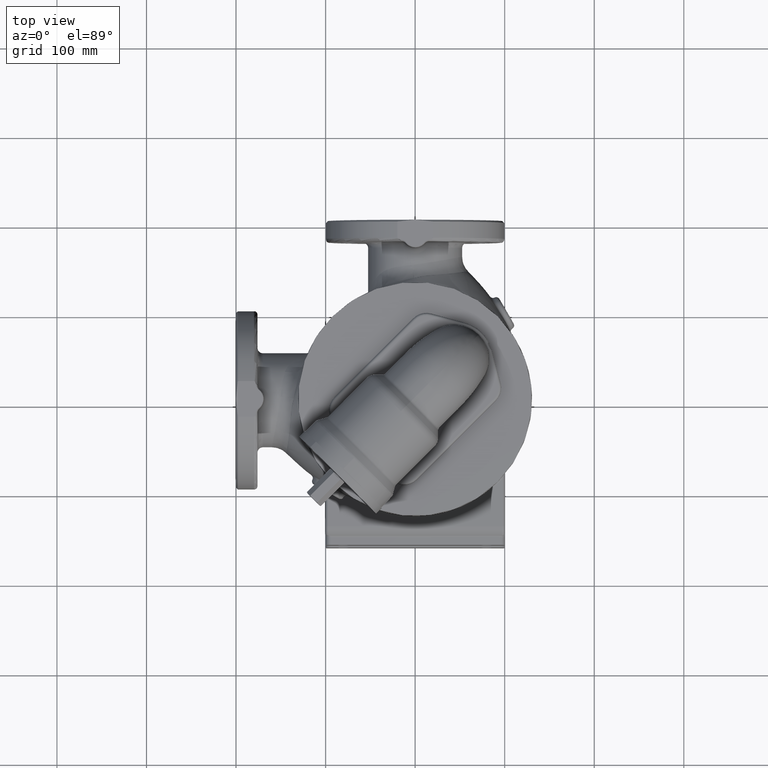
[diagram: clean part render]
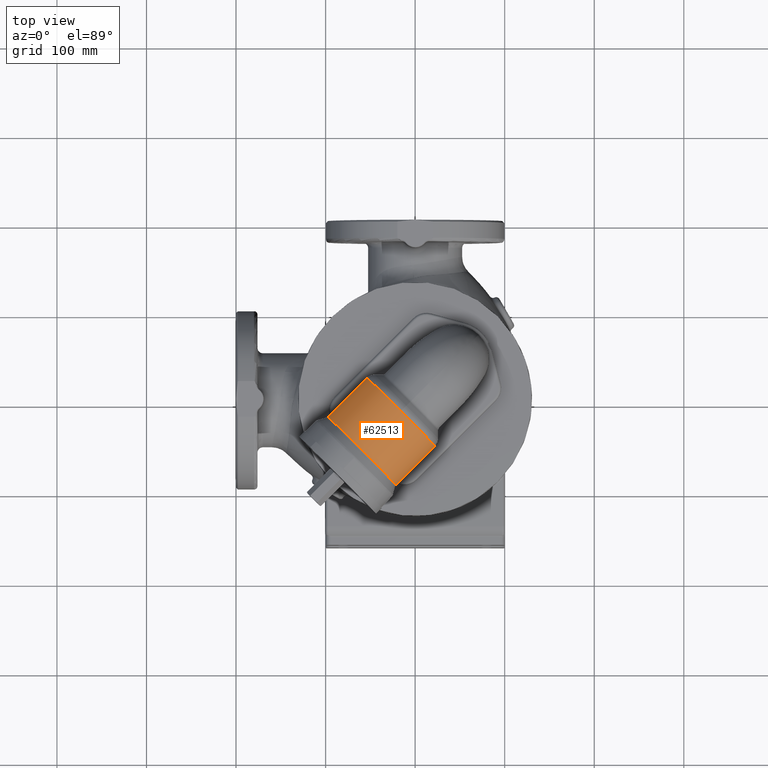
[diagram: same view with one face highlighted and labeled with its STEP entity id]
A machine part, top view. The second image highlights one B-rep face of the part: STEP entity #62513.
In plain terms, the highlighted cylindrical surface (partial cylindrical patch) has radius 54 mm, axis along (-0.7071, -0.7071, 0).
Its self-contained STEP definition (entity closure, byte-faithful):
#13935=CARTESIAN_POINT('',(-7.518984942224E0,-2.425918965083E1,
1.863133529900E2));
#13952=CARTESIAN_POINT('',(-2.425918965083E1,-7.518984942225E0,
1.863133529900E2));
#13984=CARTESIAN_POINT('',(-5.942235361104E1,-5.942235361104E1,2.39E2));
#13985=DIRECTION('',(-7.071067811865E-1,-7.071067811865E-1,0.E0));
#13986=DIRECTION('',(4.396053184643E-1,-4.396053184643E-1,-7.832587873467E-1));
#13987=AXIS2_PLACEMENT_3D('',#13984,#13985,#13986);
#13989=CARTESIAN_POINT('',(-8.316104080811E1,-3.568366641397E1,
1.967040254833E2));
#13990=CARTESIAN_POINT('',(-8.306502850757E1,-3.534713051201E1,
1.968390197705E2));
#13991=CARTESIAN_POINT('',(-8.286564048663E1,-3.467954031279E1,
1.971051392192E2));
#13992=CARTESIAN_POINT('',(-8.254484323903E1,-3.369327251899E1,
1.974924102545E2));
#13993=CARTESIAN_POINT('',(-8.220388502708E1,-3.272448906897E1,
1.978660577686E2));
#13994=CARTESIAN_POINT('',(-8.184413610980E1,-3.177446545072E1,
1.982248911215E2));
#13995=CARTESIAN_POINT('',(-8.146707413907E1,-3.084451051865E1,
1.985677987216E2));
#13996=CARTESIAN_POINT('',(-8.107403842639E1,-2.993535448442E1,
1.988939854637E2));
#13997=CARTESIAN_POINT('',(-8.066633700145E1,-2.904755217901E1,
1.992028128318E2));
#13998=CARTESIAN_POINT('',(-8.024517288405E1,-2.818136175681E1,
1.994938390296E2));
#13999=CARTESIAN_POINT('',(-7.981163747956E1,-2.733680532605E1,
1.997667860401E2));
#14000=CARTESIAN_POINT('',(-7.936669853628E1,-2.651369708532E1,
2.000215182625E2));
#14001=CARTESIAN_POINT('',(-7.891119133879E1,-2.571167203196E1,
2.002580197040E2));
#14002=CARTESIAN_POINT('',(-7.844582004519E1,-2.493022418164E1,
2.004763684417E2));
#14003=CARTESIAN_POINT('',(-7.797115920625E1,-2.416873561731E1,
2.006767151017E2));
#14004=CARTESIAN_POINT('',(-7.748765835416E1,-2.342650454799E1,
2.008592625184E2));
#14005=CARTESIAN_POINT('',(-7.699564735738E1,-2.270276905178E1,
2.010242478511E2));
#14006=CARTESIAN_POINT('',(-7.649534347989E1,-2.199672870045E1,
2.011719267888E2));
#14007=CARTESIAN_POINT('',(-7.598685900563E1,-2.130756304604E1,
2.013025601556E2));
#14008=CARTESIAN_POINT('',(-7.547020842807E1,-2.063444652139E1,
2.014164028436E2));
#14009=CARTESIAN_POINT('',(-7.494531617625E1,-1.997656083966E1,
2.015136952417E2));
#14010=CARTESIAN_POINT('',(-7.441202277914E1,-1.933310511942E1,
2.015946556314E2));
#14011=CARTESIAN_POINT('',(-7.387009080918E1,-1.870330410904E1,
2.016594743524E2));
#14012=CARTESIAN_POINT('',(-7.331921031409E1,-1.808641496512E1,
2.017083092750E2));
#14013=CARTESIAN_POINT('',(-7.275900376958E1,-1.748173287399E1,
2.017412824350E2));
#14014=CARTESIAN_POINT('',(-7.218903049802E1,-1.688859591751E1,
2.017584775201E2));
#14015=CARTESIAN_POINT('',(-7.160879116891E1,-1.630638891301E1,
2.017599388805E2));
#14016=CARTESIAN_POINT('',(-7.101773135567E1,-1.573454723197E1,
2.017456705610E2));
#14017=CARTESIAN_POINT('',(-7.041524502881E1,-1.517256075161E1,
2.017156358929E2));
#14018=CARTESIAN_POINT('',(-6.980067844787E1,-1.461997767537E1,
2.016697581898E2));
#14019=CARTESIAN_POINT('',(-6.917333429806E1,-1.407640857657E1,
2.016079221668E2));
#14020=CARTESIAN_POINT('',(-6.853247632261E1,-1.354153086130E1,
2.015299761214E2));
#14021=CARTESIAN_POINT('',(-6.787733492448E1,-1.301509314384E1,
2.014357355822E2));
#14022=CARTESIAN_POINT('',(-6.720711348480E1,-1.249692051207E1,
2.013249874909E2));
#14023=CARTESIAN_POINT('',(-6.652099618891E1,-1.198692102164E1,
2.011974952273E2));
#14024=CARTESIAN_POINT('',(-6.581815787529E1,-1.148509211858E1,
2.010530057395E2));
#14025=CARTESIAN_POINT('',(-6.509777605933E1,-1.099152763707E1,
2.008912583042E2));
#14026=CARTESIAN_POINT('',(-6.435904531975E1,-1.050642492501E1,
2.007119952269E2));
#14027=CARTESIAN_POINT('',(-6.360119442976E1,-1.003009160025E1,
2.005149748892E2));
#14028=CARTESIAN_POINT('',(-6.282350892469E1,-9.562954463028E0,
2.002999869615E2));
#14029=CARTESIAN_POINT('',(-6.202535420819E1,-9.105565090434E0,
2.000668698117E2));
#14030=CARTESIAN_POINT('',(-6.120620154745E1,-8.658603694136E0,
1.998155301727E2));
#14031=CARTESIAN_POINT('',(-6.036565743584E1,-8.222881071656E0,
1.995459649267E2));
#14032=CARTESIAN_POINT('',(-5.950349745352E1,-7.799338849705E0,
1.992582849395E2));
#14033=CARTESIAN_POINT('',(-5.861970387421E1,-7.389047064817E0,
1.989527402406E2));
#14034=CARTESIAN_POINT('',(-5.771449385640E1,-6.993191219108E0,
1.986297423351E2));
#14035=CARTESIAN_POINT('',(-5.678834578268E1,-6.613054763091E0,
1.982898841607E2));
#14036=CARTESIAN_POINT('',(-5.584201840706E1,-6.249994663433E0,
1.979339553098E2));
#14037=CARTESIAN_POINT('',(-5.487656692754E1,-5.905414721969E0,
1.975629519637E2));
#14038=CARTESIAN_POINT('',(-5.389334465662E1,-5.580730979198E0,
1.971780781700E2));
#14039=CARTESIAN_POINT('',(-5.289398212886E1,-5.277329066401E0,
1.967807345783E2));
#14040=CARTESIAN_POINT('',(-5.188035973801E1,-4.996524628347E0,
1.963724989568E2));
#14041=CARTESIAN_POINT('',(-5.085456781944E1,-4.739524755154E0,
1.959550975778E2));
#14042=CARTESIAN_POINT('',(-4.981885630431E1,-4.507395598148E0,
1.955303676972E2));
#14043=CARTESIAN_POINT('',(-4.877557071766E1,-4.301031347517E0,
1.951002141332E2));
#14044=CARTESIAN_POINT('',(-4.772709276877E1,-4.121135883662E0,
1.946665653586E2));
#14045=CARTESIAN_POINT('',(-4.667578384965E1,-3.968213625741E0,
1.942313311558E2));
#14046=CARTESIAN_POINT('',(-4.562393343462E1,-3.842569704071E0,
1.937963635551E2));
#14047=CARTESIAN_POINT('',(-4.457371048148E1,-3.744317946340E0,
1.933634215018E2));
#14048=CARTESIAN_POINT('',(-4.352713477946E1,-3.673394632356E0,
1.929341478520E2));
#14049=CARTESIAN_POINT('',(-4.248605588544E1,-3.629578122557E0,
1.925100517911E2));
#14050=CARTESIAN_POINT('',(-4.145214059984E1,-3.612510320344E0,
1.920924983311E2));
#14051=CARTESIAN_POINT('',(-4.042686680033E1,-3.621720029789E0,
1.916827030250E2));
#14052=CARTESIAN_POINT('',(-3.941152431178E1,-3.656645315278E0,
1.912817325687E2));
#14053=CARTESIAN_POINT('',(-3.840722710028E1,-3.716654043908E0,
1.908905119987E2));
#14054=CARTESIAN_POINT('',(-3.741492289139E1,-3.801063245868E0,
1.905098319741E2));
#14055=CARTESIAN_POINT('',(-3.643540610659E1,-3.909155926048E0,
1.901403585953E2));
#14056=CARTESIAN_POINT('',(-3.546933037253E1,-4.040196373251E0,
1.897826435338E2));
#14057=CARTESIAN_POINT('',(-3.451722319268E1,-4.193442002280E0,
1.894371357244E2));
#14058=CARTESIAN_POINT('',(-3.357950155234E1,-4.368153289007E0,
1.891041931975E2));
#14059=CARTESIAN_POINT('',(-3.265648434830E1,-4.563602299364E0,
1.887840935433E2));
#14060=CARTESIAN_POINT('',(-3.174840482566E1,-4.779079320227E0,
1.884770441521E2));
#14061=CARTESIAN_POINT('',(-3.085542013590E1,-5.013898886780E0,
1.881831910682E2));
#14062=CARTESIAN_POINT('',(-2.997762549307E1,-5.267402187415E0,
1.879026291550E2));
#14063=CARTESIAN_POINT('',(-2.911505767462E1,-5.538962003035E0,
1.876354080370E2));
#14064=CARTESIAN_POINT('',(-2.826770900214E1,-5.827983380463E0,
1.873815411497E2));
#14065=CARTESIAN_POINT('',(-2.743553826817E1,-6.133903491653E0,
1.871410128837E2));
#14066=CARTESIAN_POINT('',(-2.661845541011E1,-6.456201006225E0,
1.869137779874E2));
#14067=CARTESIAN_POINT('',(-2.581635102114E1,-6.794387473751E0,
1.866997742395E2));
#14068=CARTESIAN_POINT('',(-2.502913601726E1,-7.147993087417E0,
1.864989342112E2));
#14069=CARTESIAN_POINT('',(-2.451419148168E1,-7.393710994680E0,
1.863737657961E2));
#14070=CARTESIAN_POINT('',(-2.425918965083E1,-7.518984942225E0,
1.863133529900E2));
#14072=CARTESIAN_POINT('',(-1.588908729653E1,-1.588908729653E1,2.39E2));
#14073=DIRECTION('',(7.071067811865E-1,7.071067811865E-1,0.E0));
#14074=DIRECTION('',(-1.550018954500E-1,1.550018954500E-1,-9.756786483335E-1));
#14075=AXIS2_PLACEMENT_3D('',#14072,#14073,#14074);
#14077=CARTESIAN_POINT('',(-1.588908729653E1,-1.588908729653E1,2.39E2));
#14078=DIRECTION('',(-7.071067811865E-1,-7.071067811865E-1,0.E0));
#14079=DIRECTION('',(1.550018954500E-1,-1.550018954500E-1,-9.756786483335E-1));
#14080=AXIS2_PLACEMENT_3D('',#14077,#14078,#14079);
#14082=CARTESIAN_POINT('',(-7.518984942224E0,-2.425918965083E1,
1.863133529900E2));
#14083=CARTESIAN_POINT('',(-7.393711212219E0,-2.451419103663E1,
1.863737656911E2));
#14084=CARTESIAN_POINT('',(-7.147993538789E0,-2.502913509454E1,
1.864989339769E2));
#14085=CARTESIAN_POINT('',(-6.794387556789E0,-2.581635078241E1,
1.866997741737E2));
#14086=CARTESIAN_POINT('',(-6.456200442702E0,-2.661845675055E1,
1.869137783470E2));
#14087=CARTESIAN_POINT('',(-6.133902475705E0,-2.743554089718E1,
1.871410136282E2));
#14088=CARTESIAN_POINT('',(-5.827982433179E0,-2.826771178640E1,
1.873815419641E2));
#14089=CARTESIAN_POINT('',(-5.538961320790E0,-2.911505978528E1,
1.876354086788E2));
#14090=CARTESIAN_POINT('',(-5.267401424501E0,-2.997762793317E1,
1.879026299291E2));
#14091=CARTESIAN_POINT('',(-5.013898326180E0,-3.085542206943E1,
1.881831917064E2));
#14092=CARTESIAN_POINT('',(-4.779079025195E0,-3.174840633537E1,
1.884770446348E2));
#14093=CARTESIAN_POINT('',(-4.563601991674E0,-3.265648572183E1,
1.887840940152E2));
#14094=CARTESIAN_POINT('',(-4.368153100460E0,-3.357950221044E1,
1.891041934500E2));
#14095=CARTESIAN_POINT('',(-4.193442050665E0,-3.451722273132E1,
1.894371355766E2));
#14096=CARTESIAN_POINT('',(-4.040196774242E0,-3.546932838926E1,
1.897826427783E2));
#14097=CARTESIAN_POINT('',(-3.909156307029E0,-3.643540365421E1,
1.901403576527E2));
#14098=CARTESIAN_POINT('',(-3.801063409695E0,-3.741491969070E1,
1.905098308141E2));
#14099=CARTESIAN_POINT('',(-3.716654334691E0,-3.840722174251E1,
1.908905099769E2));
#14100=CARTESIAN_POINT('',(-3.656645832681E0,-3.941151585978E1,
1.912817292233E2));
#14101=CARTESIAN_POINT('',(-3.621720514268E0,-4.042685645323E1,
1.916826988134E2));
#14102=CARTESIAN_POINT('',(-3.612510155017E0,-4.145213032657E1,
1.920924942538E2));
#14103=CARTESIAN_POINT('',(-3.629577463775E0,-4.248604359149E1,
1.925100469437E2));
#14104=CARTESIAN_POINT('',(-3.673393735585E0,-4.352711853139E1,
1.929341412319E2));
#14105=CARTESIAN_POINT('',(-3.744316791865E0,-4.457369103203E1,
1.933634133233E2));
#14106=CARTESIAN_POINT('',(-3.842567830266E0,-4.562391429138E1,
1.937963555653E2));
#14107=CARTESIAN_POINT('',(-3.968210691952E0,-4.667576488362E1,
1.942313235099E2));
#14108=CARTESIAN_POINT('',(-4.121132243563E0,-4.772707193970E1,
1.946665569130E2));
#14109=CARTESIAN_POINT('',(-4.301027653066E0,-4.877554930901E1,
1.951002051573E2));
#14110=CARTESIAN_POINT('',(-4.507392027453E0,-4.981883695501E1,
1.955303594615E2));
#14111=CARTESIAN_POINT('',(-4.739520515538E0,-5.085455047842E1,
1.959550905488E2));
#14112=CARTESIAN_POINT('',(-4.996519924423E0,-5.188034430707E1,
1.963724930453E2));
#14113=CARTESIAN_POINT('',(-5.277325916399E0,-5.289397180312E1,
1.967807305119E2));
#14114=CARTESIAN_POINT('',(-5.580730476068E0,-5.389334156165E1,
1.971780766542E2));
#14115=CARTESIAN_POINT('',(-5.905415517727E0,-5.487656848780E1,
1.975629524035E2));
#14116=CARTESIAN_POINT('',(-6.249996113558E0,-5.584202337259E1,
1.979339574187E2));
#14117=CARTESIAN_POINT('',(-6.613058903057E0,-5.678835724261E1,
1.982898886546E2));
#14118=CARTESIAN_POINT('',(-6.993199544285E0,-5.771451335382E1,
1.986297493407E2));
#14119=CARTESIAN_POINT('',(-7.389058670575E0,-5.861972903122E1,
1.989527489018E2));
#14120=CARTESIAN_POINT('',(-7.799352385195E0,-5.950352578352E1,
1.992582945595E2));
#14121=CARTESIAN_POINT('',(-8.222896782303E0,-6.036568896584E1,
1.995459753762E2));
#14122=CARTESIAN_POINT('',(-8.658622806496E0,-6.120623760888E1,
1.998155415338E2));
#14123=CARTESIAN_POINT('',(-9.105587654849E0,-6.202539447844E1,
2.000668818431E2));
#14124=CARTESIAN_POINT('',(-9.562979953704E0,-6.282355245905E1,
2.002999993772E2));
#14125=CARTESIAN_POINT('',(-1.003011959895E1,-6.360124029840E1,
2.005149873276E2));
#14126=CARTESIAN_POINT('',(-1.050645576161E1,-6.435909338515E1,
2.007120073447E2));
#14127=CARTESIAN_POINT('',(-1.099156185130E1,-6.509782675331E1,
2.008912700044E2));
#14128=CARTESIAN_POINT('',(-1.148512943910E1,-6.581821100739E1,
2.010530170602E2));
#14129=CARTESIAN_POINT('',(-1.198696122672E1,-6.652105152988E1,
2.011975061460E2));
#14130=CARTESIAN_POINT('',(-1.249696354270E1,-6.720717077477E1,
2.013249978460E2));
#14131=CARTESIAN_POINT('',(-1.301513927646E1,-6.787739383002E1,
2.014357449120E2));
#14132=CARTESIAN_POINT('',(-1.354158028400E1,-6.853253640767E1,
2.015299839478E2));
#14133=CARTESIAN_POINT('',(-1.407646085098E1,-6.917339523157E1,
2.016079285479E2));
#14134=CARTESIAN_POINT('',(-1.462003223731E1,-6.980074002818E1,
2.016697633780E2));
#14135=CARTESIAN_POINT('',(-1.517261729416E1,-7.041530700941E1,
2.017156399224E2));
#14136=CARTESIAN_POINT('',(-1.573460562370E1,-7.101779341128E1,
2.017456732801E2));
#14137=CARTESIAN_POINT('',(-1.630644924026E1,-7.160885271529E1,
2.017599397859E2));
#14138=CARTESIAN_POINT('',(-1.688865803445E1,-7.218909095128E1,
2.017584762845E2));
#14139=CARTESIAN_POINT('',(-1.748179625337E1,-7.275906297121E1,
2.017412793352E2));
#14140=CARTESIAN_POINT('',(-1.808647910962E1,-7.331926839343E1,
2.017083047825E2));
#14141=CARTESIAN_POINT('',(-1.870336880837E1,-7.387014774711E1,
2.016594686179E2));
#14142=CARTESIAN_POINT('',(-1.933317032013E1,-7.441207836130E1,
2.015946485479E2));
#14143=CARTESIAN_POINT('',(-1.997662660009E1,-7.494536982984E1,
2.015136863623E2));
#14144=CARTESIAN_POINT('',(-2.063451272627E1,-7.547025993239E1,
2.014163921161E2));
#14145=CARTESIAN_POINT('',(-2.130762959475E1,-7.598690863397E1,
2.013025478814E2));
#14146=CARTESIAN_POINT('',(-2.199679558050E1,-7.649539172199E1,
2.011719133604E2));
#14147=CARTESIAN_POINT('',(-2.270283631138E1,-7.699569427392E1,
2.010242333056E2));
#14148=CARTESIAN_POINT('',(-2.342657233715E1,-7.748770367290E1,
2.008592465887E2));
#14149=CARTESIAN_POINT('',(-2.416880418674E1,-7.797120284638E1,
2.006766975969E2));
#14150=CARTESIAN_POINT('',(-2.493029405565E1,-7.844586249287E1,
2.004763493859E2));
#14151=CARTESIAN_POINT('',(-2.571174349691E1,-7.891123289363E1,
2.002579991619E2));
#14152=CARTESIAN_POINT('',(-2.651376928731E1,-7.936673861831E1,
2.000214964808E2));
#14153=CARTESIAN_POINT('',(-2.733687717905E1,-7.981167527329E1,
1.997667632563E2));
#14154=CARTESIAN_POINT('',(-2.818143428170E1,-8.024520903435E1,
1.994938150559E2));
#14155=CARTESIAN_POINT('',(-2.904762467990E1,-8.066637132807E1,
1.992027880662E2));
#14156=CARTESIAN_POINT('',(-2.993542863664E1,-8.107407163472E1,
1.988939593576E2));
#14157=CARTESIAN_POINT('',(-3.084457943613E1,-8.146710299608E1,
1.985677736490E2));
#14158=CARTESIAN_POINT('',(-3.177453246705E1,-8.184416225007E1,
1.982248660119E2));
#14159=CARTESIAN_POINT('',(-3.272455587882E1,-8.220390932855E1,
1.978660322259E2));
#14160=CARTESIAN_POINT('',(-3.369331740342E1,-8.254485834307E1,
1.974923928008E2));
#14161=CARTESIAN_POINT('',(-3.467956136863E1,-8.286564685456E1,
1.971051308386E2));
#14162=CARTESIAN_POINT('',(-3.534713740927E1,-8.306503048110E1,
1.968390170087E2));
#14163=CARTESIAN_POINT('',(-3.568366641396E1,-8.316104080811E1,
1.967040254833E2));
#20161=CARTESIAN_POINT('',(-1.588908729652E1,-1.588908729653E1,2.93E2));
#20163=VERTEX_POINT('',#20161);
#20202=VERTEX_POINT('',#13952);
#20206=VERTEX_POINT('',#13935);
#20208=VERTEX_POINT('',#14163);
#20224=CARTESIAN_POINT('',(-8.316104080811E1,-3.568366641397E1,
1.967040254833E2));
#20225=VERTEX_POINT('',#20224);
#62498=CARTESIAN_POINT('',(1.932169279592E1,1.932169279592E1,2.39E2));
#62499=DIRECTION('',(-7.071067811865E-1,-7.071067811865E-1,0.E0));
#62500=DIRECTION('',(0.E0,0.E0,-1.E0));
#62501=AXIS2_PLACEMENT_3D('',#62498,#62499,#62500);
#62502=CYLINDRICAL_SURFACE('',#62501,5.4E1);
#62504=ORIENTED_EDGE('',*,*,#62503,.T.);
#62506=ORIENTED_EDGE('',*,*,#62505,.T.);
#62507=ORIENTED_EDGE('',*,*,#62493,.T.);
#62508=ORIENTED_EDGE('',*,*,#62316,.F.);
#62510=ORIENTED_EDGE('',*,*,#62509,.T.);
#62511=EDGE_LOOP('',(#62504,#62506,#62507,#62508,#62510));
#62512=FACE_OUTER_BOUND('',#62511,.F.);
#62513=ADVANCED_FACE('',(#62512),#62502,.T.);
#13988=CIRCLE('',#13987,5.4E1);
#14071=B_SPLINE_CURVE_WITH_KNOTS('',3,(#13989,#13990,#13991,#13992,#13993,
#13994,#13995,#13996,#13997,#13998,#13999,#14000,#14001,#14002,#14003,#14004,
#14005,#14006,#14007,#14008,#14009,#14010,#14011,#14012,#14013,#14014,#14015,
#14016,#14017,#14018,#14019,#14020,#14021,#14022,#14023,#14024,#14025,#14026,
#14027,#14028,#14029,#14030,#14031,#14032,#14033,#14034,#14035,#14036,#14037,
#14038,#14039,#14040,#14041,#14042,#14043,#14044,#14045,#14046,#14047,#14048,
#14049,#14050,#14051,#14052,#14053,#14054,#14055,#14056,#14057,#14058,#14059,
#14060,#14061,#14062,#14063,#14064,#14065,#14066,#14067,#14068,#14069,#14070),
.UNSPECIFIED.,.F.,.F.,(4,1,1,1,1,1,1,1,1,1,1,1,1,1,1,1,1,1,1,1,1,1,1,1,1,1,1,1,
1,1,1,1,1,1,1,1,1,1,1,1,1,1,1,1,1,1,1,1,1,1,1,1,1,1,1,1,1,1,1,1,1,1,1,1,1,1,1,1,
1,1,1,1,1,1,1,1,1,1,1,4),(0.E0,1.265822784810E-2,2.531645569620E-2,
3.797468354430E-2,5.063291139241E-2,6.329113924051E-2,7.594936708861E-2,
8.860759493671E-2,1.012658227848E-1,1.139240506329E-1,1.265822784810E-1,
1.392405063291E-1,1.518987341772E-1,1.645569620253E-1,1.772151898734E-1,
1.898734177215E-1,2.025316455696E-1,2.151898734177E-1,2.278481012658E-1,
2.405063291139E-1,2.531645569620E-1,2.658227848101E-1,2.784810126582E-1,
2.911392405063E-1,3.037974683544E-1,3.164556962025E-1,3.291139240506E-1,
3.417721518987E-1,3.544303797468E-1,3.670886075949E-1,3.797468354430E-1,
3.924050632911E-1,4.050632911392E-1,4.177215189873E-1,4.303797468354E-1,
4.430379746835E-1,4.556962025316E-1,4.683544303797E-1,4.810126582278E-1,
4.936708860759E-1,5.063291139241E-1,5.189873417722E-1,5.316455696203E-1,
5.443037974684E-1,5.569620253165E-1,5.696202531646E-1,5.822784810127E-1,
5.949367088608E-1,6.075949367089E-1,6.202531645570E-1,6.329113924051E-1,
6.455696202532E-1,6.582278481013E-1,6.708860759494E-1,6.835443037975E-1,
6.962025316456E-1,7.088607594937E-1,7.215189873418E-1,7.341772151899E-1,
7.468354430380E-1,7.594936708861E-1,7.721518987342E-1,7.848101265823E-1,
7.974683544304E-1,8.101265822785E-1,8.227848101266E-1,8.354430379747E-1,
8.481012658228E-1,8.607594936709E-1,8.734177215190E-1,8.860759493671E-1,
8.987341772152E-1,9.113924050633E-1,9.240506329114E-1,9.367088607595E-1,
9.493670886076E-1,9.620253164557E-1,9.746835443038E-1,9.873417721519E-1,1.E0),
.UNSPECIFIED.);
#14076=CIRCLE('',#14075,5.4E1);
#14081=CIRCLE('',#14080,5.4E1);
#14164=B_SPLINE_CURVE_WITH_KNOTS('',3,(#14082,#14083,#14084,#14085,#14086,
#14087,#14088,#14089,#14090,#14091,#14092,#14093,#14094,#14095,#14096,#14097,
#14098,#14099,#14100,#14101,#14102,#14103,#14104,#14105,#14106,#14107,#14108,
#14109,#14110,#14111,#14112,#14113,#14114,#14115,#14116,#14117,#14118,#14119,
#14120,#14121,#14122,#14123,#14124,#14125,#14126,#14127,#14128,#14129,#14130,
#14131,#14132,#14133,#14134,#14135,#14136,#14137,#14138,#14139,#14140,#14141,
#14142,#14143,#14144,#14145,#14146,#14147,#14148,#14149,#14150,#14151,#14152,
#14153,#14154,#14155,#14156,#14157,#14158,#14159,#14160,#14161,#14162,#14163),
.UNSPECIFIED.,.F.,.F.,(4,1,1,1,1,1,1,1,1,1,1,1,1,1,1,1,1,1,1,1,1,1,1,1,1,1,1,1,
1,1,1,1,1,1,1,1,1,1,1,1,1,1,1,1,1,1,1,1,1,1,1,1,1,1,1,1,1,1,1,1,1,1,1,1,1,1,1,1,
1,1,1,1,1,1,1,1,1,1,1,4),(0.E0,1.265822784810E-2,2.531645569620E-2,
3.797468354430E-2,5.063291139241E-2,6.329113924051E-2,7.594936708861E-2,
8.860759493671E-2,1.012658227848E-1,1.139240506329E-1,1.265822784810E-1,
1.392405063291E-1,1.518987341772E-1,1.645569620253E-1,1.772151898734E-1,
1.898734177215E-1,2.025316455696E-1,2.151898734177E-1,2.278481012658E-1,
2.405063291139E-1,2.531645569620E-1,2.658227848101E-1,2.784810126582E-1,
2.911392405063E-1,3.037974683544E-1,3.164556962025E-1,3.291139240506E-1,
3.417721518987E-1,3.544303797468E-1,3.670886075949E-1,3.797468354430E-1,
3.924050632911E-1,4.050632911392E-1,4.177215189873E-1,4.303797468354E-1,
4.430379746835E-1,4.556962025316E-1,4.683544303797E-1,4.810126582278E-1,
4.936708860759E-1,5.063291139241E-1,5.189873417722E-1,5.316455696203E-1,
5.443037974684E-1,5.569620253165E-1,5.696202531646E-1,5.822784810127E-1,
5.949367088608E-1,6.075949367089E-1,6.202531645570E-1,6.329113924051E-1,
6.455696202532E-1,6.582278481013E-1,6.708860759494E-1,6.835443037975E-1,
6.962025316456E-1,7.088607594937E-1,7.215189873418E-1,7.341772151899E-1,
7.468354430380E-1,7.594936708861E-1,7.721518987342E-1,7.848101265823E-1,
7.974683544304E-1,8.101265822785E-1,8.227848101266E-1,8.354430379747E-1,
8.481012658228E-1,8.607594936709E-1,8.734177215190E-1,8.860759493671E-1,
8.987341772152E-1,9.113924050633E-1,9.240506329114E-1,9.367088607595E-1,
9.493670886076E-1,9.620253164557E-1,9.746835443038E-1,9.873417721519E-1,1.E0),
.UNSPECIFIED.);
#62316=EDGE_CURVE('',#20206,#20163,#14081,.T.);
#62493=EDGE_CURVE('',#20202,#20163,#14076,.T.);
#62503=EDGE_CURVE('',#20208,#20225,#13988,.T.);
#62505=EDGE_CURVE('',#20225,#20202,#14071,.T.);
#62509=EDGE_CURVE('',#20206,#20208,#14164,.T.);